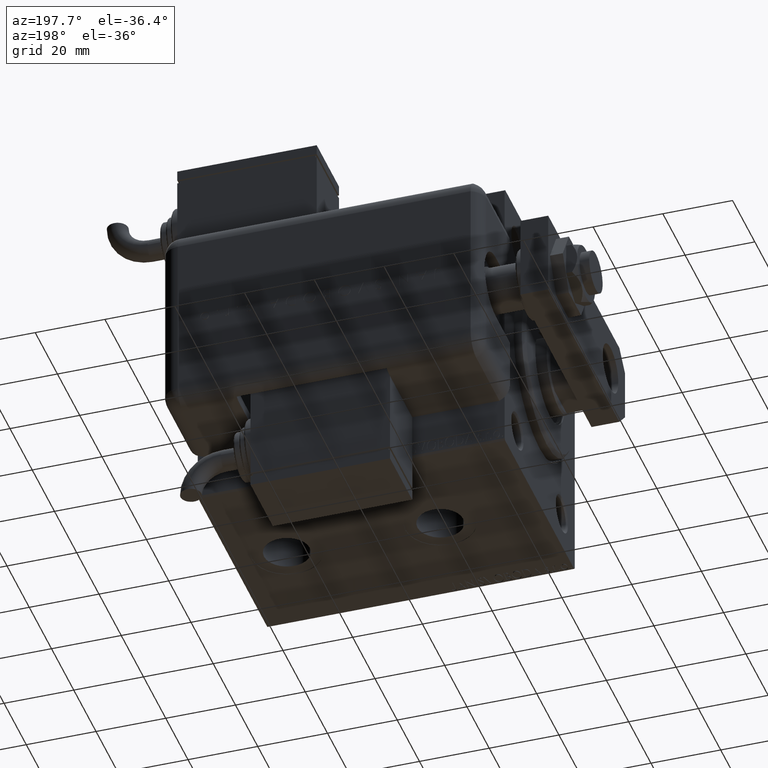
[diagram: clean part render]
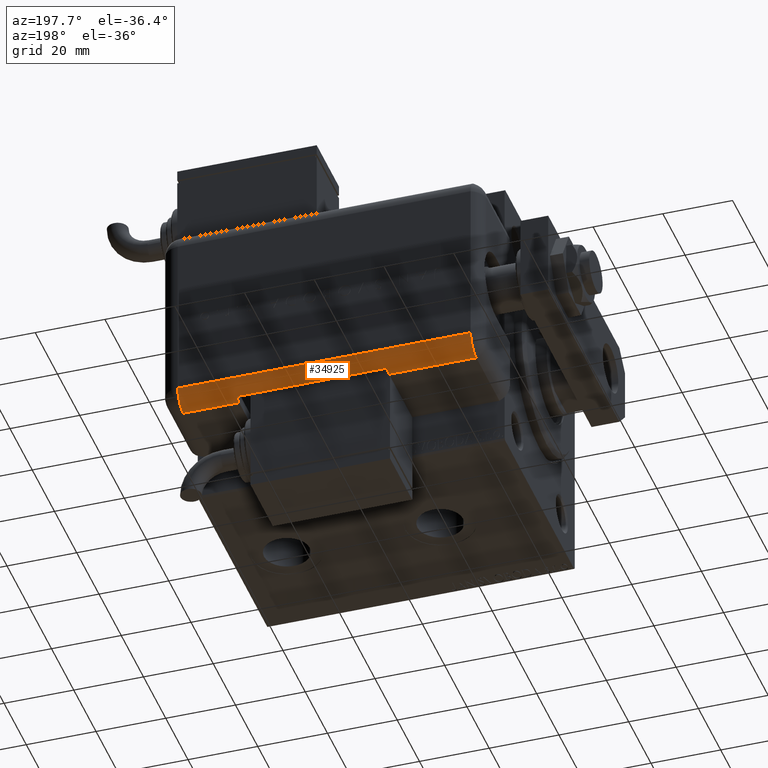
[diagram: same view with one face highlighted and labeled with its STEP entity id]
A machine part, auxiliary view. The second image highlights one B-rep face of the part: STEP entity #34925.
In plain terms, the highlighted cylindrical surface (edge-blend (fillet) strip) has radius 5 mm, axis along (1, -0, -0).
Its self-contained STEP definition (entity closure, byte-faithful):
#49 = VERTEX_POINT ( 'NONE', #14439 ) ;
#2365 = ORIENTED_EDGE ( 'NONE', *, *, #54957, .F. ) ;
#4195 = ORIENTED_EDGE ( 'NONE', *, *, #24083, .F. ) ;
#4213 = CARTESIAN_POINT ( 'NONE',  ( -28.99999999999999645, 20.79999999999998295, 89.00000000000000000 ) ) ;
#4937 = CARTESIAN_POINT ( 'NONE',  ( -28.48998886412872267, 22.99999999999998934, 64.00000000000000000 ) ) ;
#5860 = DIRECTION ( 'NONE',  ( 0.000000000000000000, 0.000000000000000000, -1.000000000000000000 ) ) ;
#6007 = DIRECTION ( 'NONE',  ( 1.000000000000000000, 0.000000000000000000, 0.000000000000000000 ) ) ;
#6415 = DIRECTION ( 'NONE',  ( -0.000000000000000000, -0.000000000000000000, 1.000000000000000000 ) ) ;
#7987 = EDGE_CURVE ( 'NONE', #28373, #37916, #38201, .T. ) ;
#8588 = CARTESIAN_POINT ( 'NONE',  ( -28.99999999999999645, 20.79999999999998295, 64.00000000000000000 ) ) ;
#8793 = ORIENTED_EDGE ( 'NONE', *, *, #40319, .F. ) ;
#9465 = DIRECTION ( 'NONE',  ( -1.000000000000000000, 0.000000000000000000, 0.000000000000000000 ) ) ;
#9551 = ORIENTED_EDGE ( 'NONE', *, *, #12714, .F. ) ;
#12217 = VERTEX_POINT ( 'NONE', #49565 ) ;
#12714 = EDGE_CURVE ( 'NONE', #41343, #48734, #24519, .T. ) ;
#14404 = DIRECTION ( 'NONE',  ( 0.000000000000000000, -0.000000000000000000, -1.000000000000000000 ) ) ;
#14439 = CARTESIAN_POINT ( 'NONE',  ( -28.99999999999999645, 20.79999999999998295, 89.00000000000000000 ) ) ;
#15969 = DIRECTION ( 'NONE',  ( 0.000000000000000000, 0.000000000000000000, -1.000000000000000000 ) ) ;
#15974 = AXIS2_PLACEMENT_3D ( 'NONE', #29673, #29986, #53865 ) ;
#16625 = VECTOR ( 'NONE', #15969, 1000.000000000000000 ) ;
#19431 = CARTESIAN_POINT ( 'NONE',  ( -23.99999999999999645, 20.79999999999998295, 21.00000000000000355 ) ) ;
#19968 = CARTESIAN_POINT ( 'NONE',  ( -23.99999999999999645, 20.79999999999998295, 64.00000000000000000 ) ) ;
#20963 = VECTOR ( 'NONE', #26537, 1000.000000000000000 ) ;
#21121 = EDGE_LOOP ( 'NONE', ( #22919, #31612, #9551, #4195, #2365, #8793, #38856, #30275 ) ) ;
#21357 = AXIS2_PLACEMENT_3D ( 'NONE', #19431, #33695, #38348 ) ;
#22183 = VERTEX_POINT ( 'NONE', #44123 ) ;
#22919 = ORIENTED_EDGE ( 'NONE', *, *, #49931, .F. ) ;
#23511 = AXIS2_PLACEMENT_3D ( 'NONE', #19968, #14404, #6007 ) ;
#24083 = EDGE_CURVE ( 'NONE', #49, #41343, #45451, .T. ) ;
#24331 = CARTESIAN_POINT ( 'NONE',  ( -23.99999999999999645, 20.79999999999998295, 5.000000000000004441 ) ) ;
#24519 = CIRCLE ( 'NONE', #23511, 5.000000000000000888 ) ;
#24599 = CARTESIAN_POINT ( 'NONE',  ( -23.99999999999999645, 25.79999999999998295, 5.000000000000004441 ) ) ;
#26537 = DIRECTION ( 'NONE',  ( 0.000000000000000000, 0.000000000000000000, -1.000000000000000000 ) ) ;
#27314 = AXIS2_PLACEMENT_3D ( 'NONE', #24331, #47591, #9465 ) ;
#28373 = VERTEX_POINT ( 'NONE', #24599 ) ;
#29433 = CARTESIAN_POINT ( 'NONE',  ( -28.48998886412872267, 22.99999999999998934, 89.00000000000000000 ) ) ;
#29673 = CARTESIAN_POINT ( 'NONE',  ( -23.99999999999999645, 20.79999999999998295, 89.00000000000000000 ) ) ;
#29986 = DIRECTION ( 'NONE',  ( 0.000000000000000000, 0.000000000000000000, -1.000000000000000000 ) ) ;
#30275 = ORIENTED_EDGE ( 'NONE', *, *, #58470, .F. ) ;
#30803 = EDGE_CURVE ( 'NONE', #48734, #51441, #54531, .T. ) ;
#30945 = CARTESIAN_POINT ( 'NONE',  ( -28.99999999999999645, 20.79999999999998295, 5.000000000000004441 ) ) ;
#31213 = CARTESIAN_POINT ( 'NONE',  ( -23.99999999999999645, 25.79999999999998295, 89.00000000000000000 ) ) ;
#31612 = ORIENTED_EDGE ( 'NONE', *, *, #30803, .F. ) ;
#33695 = DIRECTION ( 'NONE',  ( -0.000000000000000000, -0.000000000000000000, 1.000000000000000000 ) ) ;
#34604 = CARTESIAN_POINT ( 'NONE',  ( -28.99999999999999645, 20.79999999999998295, 89.00000000000000000 ) ) ;
#34925 = ADVANCED_FACE ( 'NONE', ( #44859 ), #49515, .T. ) ;
#34990 = VECTOR ( 'NONE', #6415, 1000.000000000000000 ) ;
#35838 = AXIS2_PLACEMENT_3D ( 'NONE', #37348, #61245, #55660 ) ;
#37084 = LINE ( 'NONE', #4213, #20963 ) ;
#37348 = CARTESIAN_POINT ( 'NONE',  ( -23.99999999999999645, 20.79999999999998295, 89.00000000000000000 ) ) ;
#37916 = VERTEX_POINT ( 'NONE', #30945 ) ;
#38201 = CIRCLE ( 'NONE', #27314, 5.000000000000000888 ) ;
#38348 = DIRECTION ( 'NONE',  ( -1.000000000000000000, 4.163336342344336238E-15, 0.000000000000000000 ) ) ;
#38856 = ORIENTED_EDGE ( 'NONE', *, *, #7987, .T. ) ;
#40319 = EDGE_CURVE ( 'NONE', #28373, #12217, #44557, .T. ) ;
#41343 = VERTEX_POINT ( 'NONE', #8588 ) ;
#44123 = CARTESIAN_POINT ( 'NONE',  ( -28.99999999999999645, 20.79999999999998295, 21.00000000000000355 ) ) ;
#44557 = LINE ( 'NONE', #31213, #34990 ) ;
#44859 = FACE_OUTER_BOUND ( 'NONE', #21121, .T. ) ;
#45451 = LINE ( 'NONE', #34604, #16625 ) ;
#47129 = CIRCLE ( 'NONE', #21357, 5.000000000000000888 ) ;
#47591 = DIRECTION ( 'NONE',  ( -0.000000000000000000, -0.000000000000000000, 1.000000000000000000 ) ) ;
#47715 = CIRCLE ( 'NONE', #35838, 5.000000000000000888 ) ;
#48734 = VERTEX_POINT ( 'NONE', #4937 ) ;
#49515 = CYLINDRICAL_SURFACE ( 'NONE', #15974, 5.000000000000000888 ) ;
#49565 = CARTESIAN_POINT ( 'NONE',  ( -23.99999999999999645, 25.79999999999998295, 89.00000000000000000 ) ) ;
#49931 = EDGE_CURVE ( 'NONE', #51441, #22183, #47129, .T. ) ;
#51441 = VERTEX_POINT ( 'NONE', #56375 ) ;
#53865 = DIRECTION ( 'NONE',  ( -1.000000000000000000, 0.000000000000000000, 0.000000000000000000 ) ) ;
#54444 = VECTOR ( 'NONE', #5860, 1000.000000000000000 ) ;
#54531 = LINE ( 'NONE', #29433, #54444 ) ;
#54957 = EDGE_CURVE ( 'NONE', #12217, #49, #47715, .T. ) ;
#55660 = DIRECTION ( 'NONE',  ( -1.000000000000000000, 0.000000000000000000, 0.000000000000000000 ) ) ;
#56375 = CARTESIAN_POINT ( 'NONE',  ( -28.48998886412872267, 22.99999999999998934, 21.00000000000000355 ) ) ;
#58470 = EDGE_CURVE ( 'NONE', #22183, #37916, #37084, .T. ) ;
#61245 = DIRECTION ( 'NONE',  ( -0.000000000000000000, -0.000000000000000000, 1.000000000000000000 ) ) ;